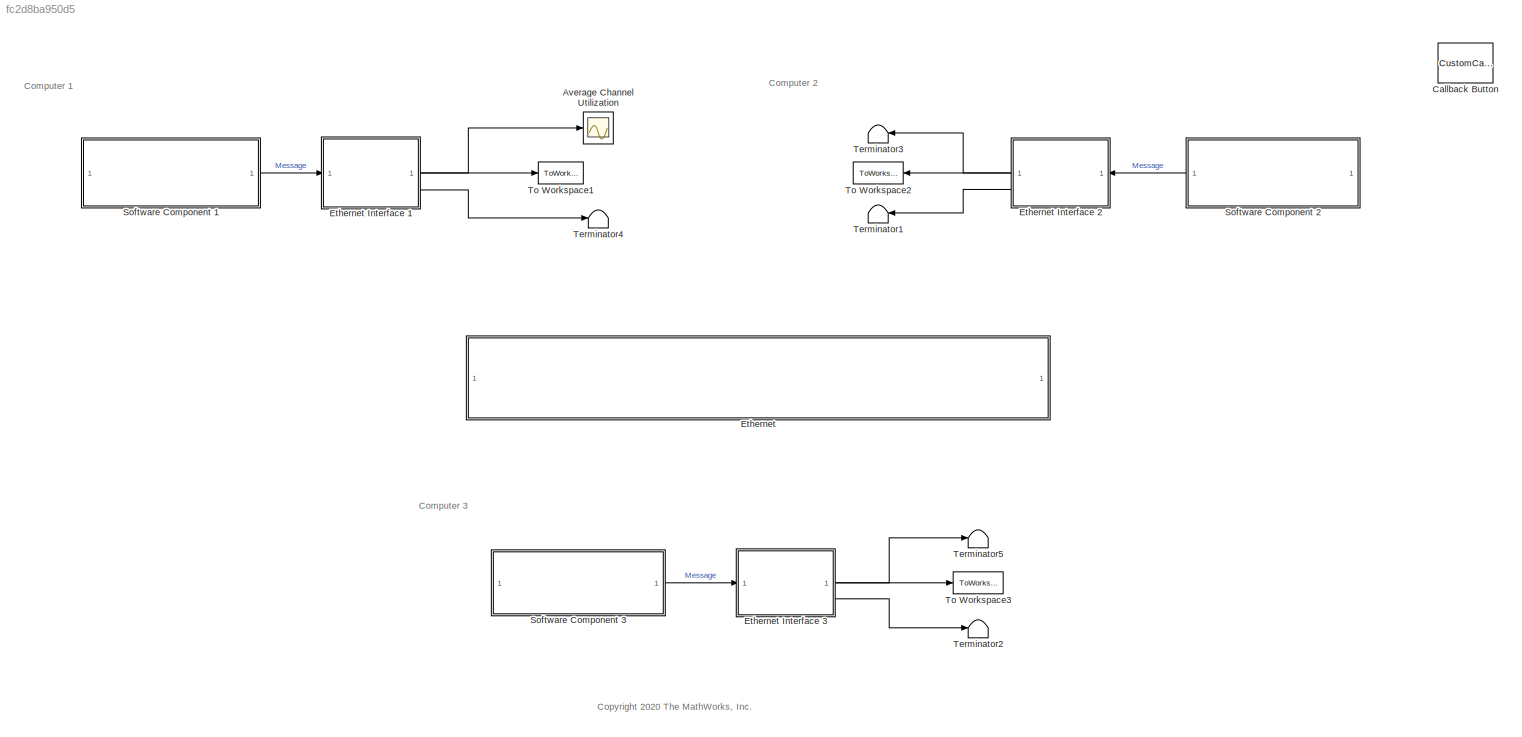
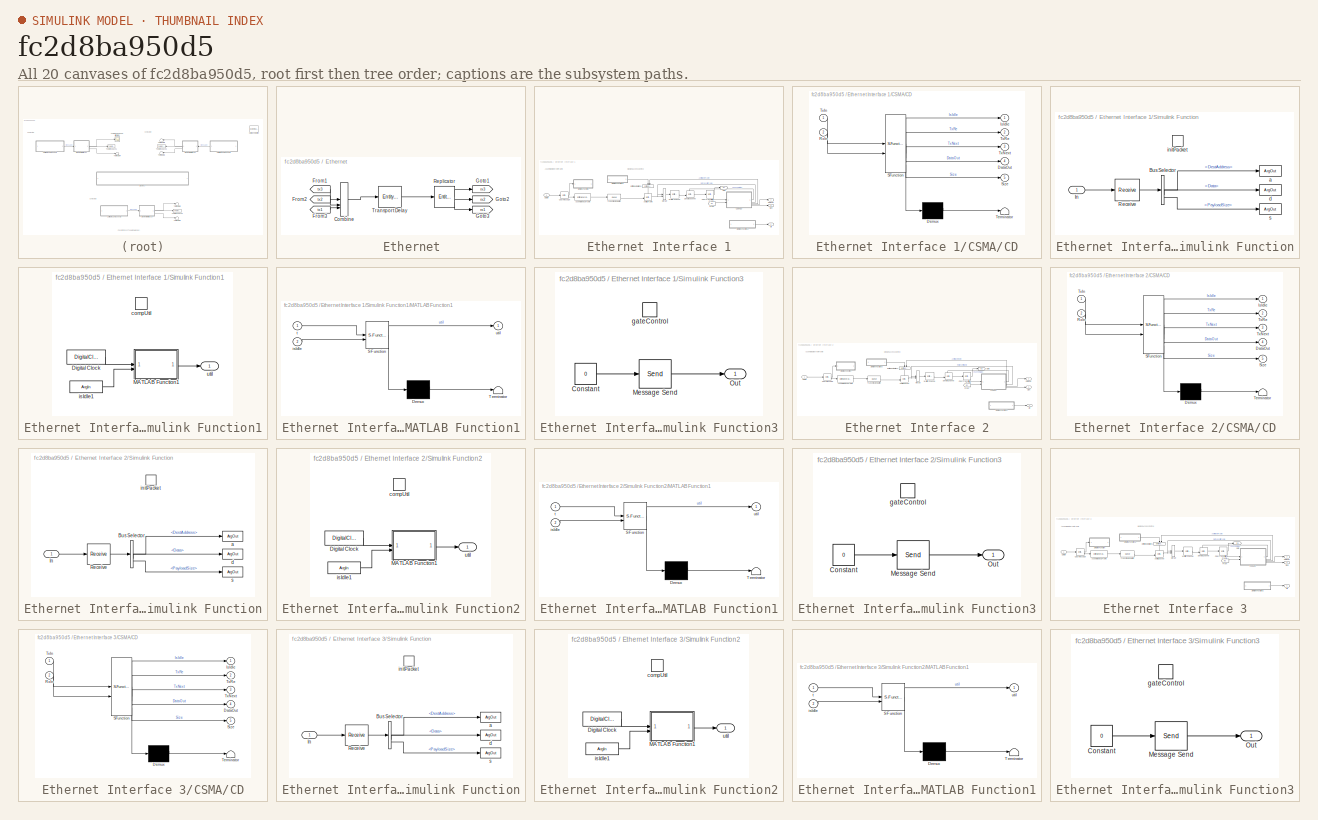
[diagram: thumbnail index - all 20 canvases of the model, root first then tree order]
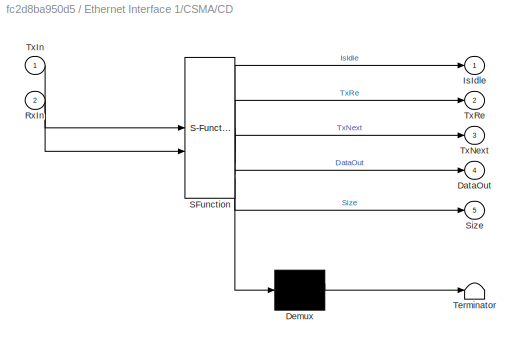
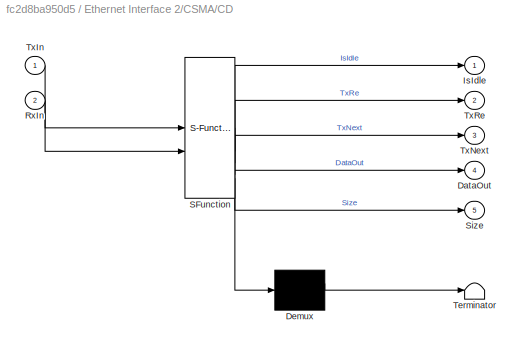
MODEL slx_fc2d8ba950d5
KIND model
CONFIG AbsTol = auto
CONFIG EnableMultiTasking = on
CONFIG FixedStep = 1
CONFIG InitFcn = BitRate = 10e6;
CONFIG MaxStep = Inf
CONFIG MinStep = auto
CONFIG PreLoadFcn = load ethernetTypes.mat;
CONFIG RelTol = 1e-3
CONFIG SampleTimeConstraint = Unconstrained
CONFIG SolverName = VariableStepAuto
CONFIG StartTime = 0.0
CONFIG StopTime = 50
BLOCK [SubSystem]    Ethernet
BLOCK [EntityInputSwitch]    Ethernet/Combine
  InputPortMap = u1,u2,u3
  InputPortMessageModes = m,m,m
  NumberInputPorts = 3
  OutputPortMap = o0
  OutputPortMessageModes = m
BLOCK [From]    Ethernet/From1
  GotoTag = tx3
  TagVisibility = global
BLOCK [From]    Ethernet/From2
  GotoTag = tx2
  TagVisibility = global
BLOCK [From]    Ethernet/From3
  GotoTag = tx1
  TagVisibility = global
BLOCK [Goto]    Ethernet/Goto1
  GotoTag = rx3
  TagVisibility = global
BLOCK [Goto]    Ethernet/Goto2
  GotoTag = rx2
  TagVisibility = global
BLOCK [Goto]    Ethernet/Goto3
  GotoTag = rx1
  TagVisibility = global
BLOCK [EntityReplicator]    Ethernet/Replicator
  InputPortMap = u0
  InputPortMessageModes = m
  NumberReplicas = 2
  OutputPortMap = o0,o1,o2
  OutputPortMessageModes = m,m,m
BLOCK [EntityServer]    Ethernet/Transport Delay
  Capacity = Inf
  InputPortMap = u2
  InputPortMessageModes = m
  OutputPortMap = o9
  OutputPortMessageModes = m
  ServiceCompleteAction = src = entity.TxAddress;\ndst = entity.RxAddress;\nsrcIdx = 0;\ndstIdx = 0;\nfor i = 1:length(Stations)\n    if src == Stations(i)\n        srcIdx = i;\n    end\n    if dst == Stations(i)\n        dstIdx = i;\n    end\n    if srcIdx > 0 && dstIdx > 0\n        break;\n    end\nend\nif rand < (PER(srcIdx) + PER(dstIdx))\n    entity.CRC = 1;\nend
  ServiceTimeAction = src = entity.TxAddress;\ndst = entity.RxAddress;\nsrcl = 0;\ndstl = 0;\nfor i = 1:length(Stations)\n    if src == Stations(i)\n        srcl = CableLength(i);\n    end\n    if dst == Stations(i)\n        dstl = CableLength(i);\n    end\n    if srcl > 0 && dstl > 0\n        break;\n    end\nend\ndt = ProcessingTime + (srcl + dstl)/3e8;
  ServiceTimeSource = MATLAB action
BLOCK [Scope] Average Channel Utilization
  Floating = off
  NumInputPorts = 1
  ScopeSpecificationString = Simulink.scopes.TimeScopeBlockCfg('CurrentConfiguration', extmgr.ConfigurationSet(extmgr.Configuration('Core','General UI',true),extmgr.Configuration('Core','Source UI',true),extmgr.Configuration('Sources','WiredSimulink',true,'DataLoggingVariableName','ScopeData1'),extmgr.Configuration('Visuals','Time Domain',true,'SerializedDisplays',{struct('MinYLimReal','0.09644','MaxYLimReal','0.16361','YLabe...<+1458ch>
BLOCK [CustomCallbackButton] Callback Button
  Configuration = {"components":[{"name":"BackgroundImageComponent","settings":{"image":{"size":[0,0],"src":"default","srcOrientation":"Right"},"position":[0,0,1,1]}},{"name":"ButtonStateComponent","settings":{"buttonType":"momentary","clickFcn":"showExample('simulink\/EthernetUsingMessagesSimEventsAndStateflowExample')","onValue":1,"position":[0,0,1,1],"pressDelay":"500","pressFcn":"","repeatInterval":"0","states"...<+1781ch>
  CustomBackgroundColor = {"color":[0.9568627451,0.9568627451,0.9568627451],"show":true}
BLOCK [SubSystem] Ethernet Interface 1
BLOCK [EntityGate] Ethernet Interface 1/Admit 1 Frame 
  InputPortMap = u0,u1
  InputPortMessageModes = m,m
  OpenGateAtSimulationStart = on
  OutputPortMap = o0
  OutputPortMessageModes = m
BLOCK [EntityGenerator] Ethernet Interface 1/Assemble MAC Frame
  EntityType = Bus object
  EntityTypeName = ethernetPacket
  GenerateAction = entity.TxAddress = StationID;\n[entity.RxAddress, entity.Data, entity.PayloadSize] = ...\n    initPacket();\nentity.TxDelay = (entity.PayloadSize+22)*8/BitRate;\nentity.BackoffTime = 0;\nentity.CRC = 0;  <repeated x3 — deduplicated; at blocks: Assemble MAC Frame>
  GenerationMethod = Event-based
  InputPortMap = u0
  InputPortMessageModes = m
  OutputPortMap = o3
  OutputPortMessageModes = m
BLOCK [SubSystem] Ethernet Interface 1/CSMA//CD
  ErrorFcn = Stateflow.Translate.translate
  PermitHierarchicalResolution = ExplicitOnly
  SFBlockType = Chart
  TreatAsAtomicUnit = on
BLOCK [Demux] Ethernet Interface 1/CSMA//CD/ Demux 
  Outputs = 1
BLOCK [S-Function] Ethernet Interface 1/CSMA//CD/ SFunction 
  EnableBusSupport = off
  FunctionName = sf_sfun
  Parameters = StationID
  PortCounts = [2 6]
  SFcnIsStateOwnerBlock = off
  SFunctionDeploymentMode = off
  Tag = Stateflow S-Function 4
BLOCK [Terminator] Ethernet Interface 1/CSMA//CD/ Terminator 
BLOCK [Outport] Ethernet Interface 1/CSMA//CD/DataOut
  Port = 4
BLOCK [Outport] Ethernet Interface 1/CSMA//CD/IsIdle
BLOCK [Inport] Ethernet Interface 1/CSMA//CD/RxIn
  Port = 2
BLOCK [Outport] Ethernet Interface 1/CSMA//CD/Size
  Port = 5
BLOCK [Inport] Ethernet Interface 1/CSMA//CD/TxIn
BLOCK [Outport] Ethernet Interface 1/CSMA//CD/TxNext
  Port = 3
BLOCK [Outport] Ethernet Interface 1/CSMA//CD/TxRe
  Port = 2
BLOCK [EntityReplicator] Ethernet Interface 1/Copy Message
  InputPortMap = u0
  InputPortMessageModes = m
  OutputPortMap = o0,o1
  OutputPortMessageModes = m,m
BLOCK [EntityReplicator] Ethernet Interface 1/Copy Transmitted Frame
  InputPortMap = u0
  InputPortMessageModes = m
  OutputPortMap = o0,o1
  OutputPortMessageModes = m,m
BLOCK [Inport] Ethernet Interface 1/DataIn
BLOCK [Outport] Ethernet Interface 1/DataOut
  Port = 2
BLOCK [EntityInputSwitch] Ethernet Interface 1/Entity Input Switch1
  InputPortMap = u1,u2
  InputPortMessageModes = m,m
  NameLocation = left
  OutputPortMap = o0
  OutputPortMessageModes = m
BLOCK [From] Ethernet Interface 1/From
  GotoTag = rx1
  TagVisibility = global
BLOCK [Goto] Ethernet Interface 1/Goto
  GotoTag = tx1
  TagVisibility = global
BLOCK [EntityInputSwitch] Ethernet Interface 1/Merge 
  InputPortMap = u1,u2
  InputPortMessageModes = m,m
  OutputPortMap = o0
  OutputPortMessageModes = m
BLOCK [EntityGate] Ethernet Interface 1/Send to Channel
  InputPortMap = u0,u1
  InputPortMessageModes = m,m
  OpenGateAtSimulationStart = on
  OutputPortMap = o0
  OutputPortMessageModes = m
BLOCK [SubSystem] Ethernet Interface 1/Simulink Function
  TreatAsAtomicUnit = on
BLOCK [BusSelector] Ethernet Interface 1/Simulink Function/Bus Selector
  OutputSignals = DestAddress,Data,PayloadSize
BLOCK [Inport] Ethernet Interface 1/Simulink Function/In
BLOCK [Receive] Ethernet Interface 1/Simulink Function/Receive
  InputPortMap = u0
  InputPortMessageModes = m
  OutputPortMap = o1
  QueueLength = 2^16-1
BLOCK [ArgOut] Ethernet Interface 1/Simulink Function/a
  ArgumentName = a
  DisableCoverage = on
BLOCK [ArgOut] Ethernet Interface 1/Simulink Function/d
  ArgumentName = d
  Port = 2
  PortDimensions = [1 1500]
BLOCK [TriggerPort] Ethernet Interface 1/Simulink Function/initPacket
  FunctionName = initPacket
  FunctionVisibility = scoped
  IsSimulinkFunction = on
  StatesWhenEnabling = held
  TriggerType = function-call
  VariantControl = (inherit)
BLOCK [ArgOut] Ethernet Interface 1/Simulink Function/s
  ArgumentName = s
  Port = 3
BLOCK [SubSystem] Ethernet Interface 1/Simulink Function1
  TreatAsAtomicUnit = on
BLOCK [DigitalClock] Ethernet Interface 1/Simulink Function1/Digital Clock
  SampleTime = -1
BLOCK [SubSystem] Ethernet Interface 1/Simulink Function1/MATLAB Function1
  ErrorFcn = Stateflow.Translate.translate
  PermitHierarchicalResolution = ExplicitOnly
  SFBlockType = MATLAB Function
  TreatAsAtomicUnit = on
BLOCK [Demux] Ethernet Interface 1/Simulink Function1/MATLAB Function1/ Demux 
  Outputs = 1
BLOCK [S-Function] Ethernet Interface 1/Simulink Function1/MATLAB Function1/ SFunction 
  EnableBusSupport = off
  FunctionName = sf_sfun
  PortCounts = [2 2]
  SFcnIsStateOwnerBlock = off
  SFunctionDeploymentMode = off
  Tag = Stateflow S-Function 7
BLOCK [Terminator] Ethernet Interface 1/Simulink Function1/MATLAB Function1/ Terminator 
BLOCK [Inport] Ethernet Interface 1/Simulink Function1/MATLAB Function1/isIdle
  Port = 2
BLOCK [Inport] Ethernet Interface 1/Simulink Function1/MATLAB Function1/t
BLOCK [Outport] Ethernet Interface 1/Simulink Function1/MATLAB Function1/util
BLOCK [TriggerPort] Ethernet Interface 1/Simulink Function1/compUtil
  FunctionName = compUtil
  FunctionVisibility = scoped
  IsSimulinkFunction = on
  StatesWhenEnabling = held
  TriggerType = function-call
  VariantControl = (inherit)
BLOCK [ArgIn] Ethernet Interface 1/Simulink Function1/isIdle1
  ArgumentName = isIdle
BLOCK [Outport] Ethernet Interface 1/Simulink Function1/util
BLOCK [SubSystem] Ethernet Interface 1/Simulink Function3
  TreatAsAtomicUnit = on
BLOCK [Constant] Ethernet Interface 1/Simulink Function3/Constant
  Value = 0
BLOCK [Send] Ethernet Interface 1/Simulink Function3/Message Send
  InputPortMap = u1
  OutputPortMessageModes = m
BLOCK [Outport] Ethernet Interface 1/Simulink Function3/Out
BLOCK [TriggerPort] Ethernet Interface 1/Simulink Function3/gateControl
  FunctionName = gateControl
  FunctionVisibility = scoped
  IsSimulinkFunction = on
  StatesWhenEnabling = held
  TriggerType = function-call
  VariantControl = Variant
BLOCK [Outport] Ethernet Interface 1/Size
  Port = 3
BLOCK [Queue] Ethernet Interface 1/Transmission Buffer
  Capacity = TxBufferCapacity
  ExitAction = gateControl();
  InputPortMap = u0
  InputPortMessageModes = m
  OutputPortMap = o5
  OutputPortMessageModes = m
BLOCK [EntityServer] Ethernet Interface 1/Wait for Channel
  Capacity = 1
  InputPortMap = u2
  InputPortMessageModes = m
  OutputPortMap = o9
  OutputPortMessageModes = m
  ServiceTimeAttributeName = BackoffTime
  ServiceTimeSource = Attribute
BLOCK [Outport] Ethernet Interface 1/util
BLOCK [SubSystem] Ethernet Interface 2
BLOCK [EntityGate] Ethernet Interface 2/Admit 1 packet 
  InputPortMap = u0,u1
  InputPortMessageModes = m,m
  OpenGateAtSimulationStart = on
  OutputPortMap = o0
  OutputPortMessageModes = m
BLOCK [EntityGenerator] Ethernet Interface 2/Assemble MAC Frame
  EntityType = Bus object
  EntityTypeName = ethernetPacket
  GenerationMethod = Event-based
  InputPortMap = u0
  InputPortMessageModes = m
  OutputPortMap = o3
  OutputPortMessageModes = m
BLOCK [SubSystem] Ethernet Interface 2/CSMA//CD
  ErrorFcn = Stateflow.Translate.translate
  PermitHierarchicalResolution = ExplicitOnly
  SFBlockType = Chart
  TreatAsAtomicUnit = on
BLOCK [Demux] Ethernet Interface 2/CSMA//CD/ Demux 
  Outputs = 1
BLOCK [S-Function] Ethernet Interface 2/CSMA//CD/ SFunction 
  EnableBusSupport = off
  FunctionName = sf_sfun
  Parameters = StationID
  PortCounts = [2 6]
  SFcnIsStateOwnerBlock = off
  SFunctionDeploymentMode = off
  Tag = Stateflow S-Function 2
BLOCK [Terminator] Ethernet Interface 2/CSMA//CD/ Terminator 
BLOCK [Outport] Ethernet Interface 2/CSMA//CD/DataOut
  Port = 4
BLOCK [Outport] Ethernet Interface 2/CSMA//CD/IsIdle
BLOCK [Inport] Ethernet Interface 2/CSMA//CD/RxIn
  Port = 2
BLOCK [Outport] Ethernet Interface 2/CSMA//CD/Size
  Port = 5
BLOCK [Inport] Ethernet Interface 2/CSMA//CD/TxIn
BLOCK [Outport] Ethernet Interface 2/CSMA//CD/TxNext
  Port = 3
BLOCK [Outport] Ethernet Interface 2/CSMA//CD/TxRe
  Port = 2
BLOCK [EntityReplicator] Ethernet Interface 2/Copy Message
  InputPortMap = u0
  InputPortMessageModes = m
  OutputPortMap = o0,o1
  OutputPortMessageModes = m,m
BLOCK [EntityReplicator] Ethernet Interface 2/Copy Transmitted Frame
  InputPortMap = u0
  InputPortMessageModes = m
  OutputPortMap = o0,o1
  OutputPortMessageModes = m,m
BLOCK [Inport] Ethernet Interface 2/DataIn
BLOCK [Outport] Ethernet Interface 2/DataOut
  Port = 2
BLOCK [EntityInputSwitch] Ethernet Interface 2/Entity Input Switch1
  InputPortMap = u1,u2
  InputPortMessageModes = m,m
  NameLocation = left
  OutputPortMap = o0
  OutputPortMessageModes = m
BLOCK [From] Ethernet Interface 2/From
  GotoTag = rx2
  TagVisibility = global
BLOCK [Goto] Ethernet Interface 2/Goto
  GotoTag = tx2
  TagVisibility = global
BLOCK [EntityInputSwitch] Ethernet Interface 2/Merge
  InputPortMap = u1,u2
  InputPortMessageModes = m,m
  OutputPortMap = o0
  OutputPortMessageModes = m
BLOCK [EntityGate] Ethernet Interface 2/Send to Channel
  InputPortMap = u0,u1
  InputPortMessageModes = m,m
  OpenGateAtSimulationStart = on
  OutputPortMap = o0
  OutputPortMessageModes = m
BLOCK [SubSystem] Ethernet Interface 2/Simulink Function
  TreatAsAtomicUnit = on
BLOCK [BusSelector] Ethernet Interface 2/Simulink Function/Bus Selector
  OutputSignals = DestAddress,Data,PayloadSize
BLOCK [Inport] Ethernet Interface 2/Simulink Function/In
BLOCK [Receive] Ethernet Interface 2/Simulink Function/Receive
  InputPortMap = u0
  InputPortMessageModes = m
  OutputPortMap = o1
  QueueLength = 2^16-1
BLOCK [ArgOut] Ethernet Interface 2/Simulink Function/a
  ArgumentName = a
  DisableCoverage = on
BLOCK [ArgOut] Ethernet Interface 2/Simulink Function/d
  ArgumentName = d
  Port = 2
  PortDimensions = [1 1500]
BLOCK [TriggerPort] Ethernet Interface 2/Simulink Function/initPacket
  FunctionName = initPacket
  FunctionVisibility = scoped
  IsSimulinkFunction = on
  StatesWhenEnabling = held
  TriggerType = function-call
  VariantControl = (inherit)
BLOCK [ArgOut] Ethernet Interface 2/Simulink Function/s
  ArgumentName = s
  Port = 3
BLOCK [SubSystem] Ethernet Interface 2/Simulink Function2
  TreatAsAtomicUnit = on
BLOCK [DigitalClock] Ethernet Interface 2/Simulink Function2/Digital Clock
  SampleTime = -1
BLOCK [SubSystem] Ethernet Interface 2/Simulink Function2/MATLAB Function1
  ErrorFcn = Stateflow.Translate.translate
  PermitHierarchicalResolution = ExplicitOnly
  SFBlockType = MATLAB Function
  TreatAsAtomicUnit = on
BLOCK [Demux] Ethernet Interface 2/Simulink Function2/MATLAB Function1/ Demux 
  Outputs = 1
BLOCK [S-Function] Ethernet Interface 2/Simulink Function2/MATLAB Function1/ SFunction 
  EnableBusSupport = off
  FunctionName = sf_sfun
  PortCounts = [2 2]
  SFcnIsStateOwnerBlock = off
  SFunctionDeploymentMode = off
  Tag = Stateflow S-Function 3
BLOCK [Terminator] Ethernet Interface 2/Simulink Function2/MATLAB Function1/ Terminator 
BLOCK [Inport] Ethernet Interface 2/Simulink Function2/MATLAB Function1/isIdle
  Port = 2
BLOCK [Inport] Ethernet Interface 2/Simulink Function2/MATLAB Function1/t
BLOCK [Outport] Ethernet Interface 2/Simulink Function2/MATLAB Function1/util
BLOCK [TriggerPort] Ethernet Interface 2/Simulink Function2/compUtil
  FunctionName = compUtil
  FunctionVisibility = scoped
  IsSimulinkFunction = on
  StatesWhenEnabling = held
  TriggerType = function-call
  VariantControl = (inherit)
BLOCK [ArgIn] Ethernet Interface 2/Simulink Function2/isIdle1
  ArgumentName = isIdle
BLOCK [Outport] Ethernet Interface 2/Simulink Function2/util
BLOCK [SubSystem] Ethernet Interface 2/Simulink Function3
  TreatAsAtomicUnit = on
BLOCK [Constant] Ethernet Interface 2/Simulink Function3/Constant
  Value = 0
BLOCK [Send] Ethernet Interface 2/Simulink Function3/Message Send
  InputPortMap = u1
  OutputPortMessageModes = m
BLOCK [Outport] Ethernet Interface 2/Simulink Function3/Out
BLOCK [TriggerPort] Ethernet Interface 2/Simulink Function3/gateControl
  FunctionName = gateControl
  FunctionVisibility = scoped
  IsSimulinkFunction = on
  StatesWhenEnabling = held
  TriggerType = function-call
  VariantControl = Variant
BLOCK [Outport] Ethernet Interface 2/Size
  Port = 3
BLOCK [Queue] Ethernet Interface 2/Transmission Buffer
  Capacity = TxBufferCapacity
  ExitAction = gateControl();
  InputPortMap = u0
  InputPortMessageModes = m
  OutputPortMap = o5
  OutputPortMessageModes = m
BLOCK [EntityServer] Ethernet Interface 2/Wait for Channel
  Capacity = 1
  InputPortMap = u2
  InputPortMessageModes = m
  OutputPortMap = o9
  OutputPortMessageModes = m
  ServiceTimeAttributeName = BackoffTime
  ServiceTimeSource = Attribute
BLOCK [Outport] Ethernet Interface 2/util
BLOCK [SubSystem] Ethernet Interface 3
BLOCK [EntityGate] Ethernet Interface 3/Admit 1 packet 
  InputPortMap = u0,u1
  InputPortMessageModes = m,m
  OpenGateAtSimulationStart = on
  OutputPortMap = o0
  OutputPortMessageModes = m
BLOCK [EntityGenerator] Ethernet Interface 3/Assemble MAC Frame
  EntityType = Bus object
  EntityTypeName = ethernetPacket
  GenerationMethod = Event-based
  InputPortMap = u0
  InputPortMessageModes = m
  OutputPortMap = o3
  OutputPortMessageModes = m
BLOCK [SubSystem] Ethernet Interface 3/CSMA//CD
  ErrorFcn = Stateflow.Translate.translate
  PermitHierarchicalResolution = ExplicitOnly
  SFBlockType = Chart
  TreatAsAtomicUnit = on
BLOCK [Demux] Ethernet Interface 3/CSMA//CD/ Demux 
  Outputs = 1
BLOCK [S-Function] Ethernet Interface 3/CSMA//CD/ SFunction 
  EnableBusSupport = off
  FunctionName = sf_sfun
  Parameters = StationID
  PortCounts = [2 6]
  SFcnIsStateOwnerBlock = off
  SFunctionDeploymentMode = off
  Tag = Stateflow S-Function 1
BLOCK [Terminator] Ethernet Interface 3/CSMA//CD/ Terminator 
BLOCK [Outport] Ethernet Interface 3/CSMA//CD/DataOut
  Port = 4
BLOCK [Outport] Ethernet Interface 3/CSMA//CD/IsIdle
BLOCK [Inport] Ethernet Interface 3/CSMA//CD/RxIn
  Port = 2
BLOCK [Outport] Ethernet Interface 3/CSMA//CD/Size
  Port = 5
BLOCK [Inport] Ethernet Interface 3/CSMA//CD/TxIn
BLOCK [Outport] Ethernet Interface 3/CSMA//CD/TxNext
  Port = 3
BLOCK [Outport] Ethernet Interface 3/CSMA//CD/TxRe
  Port = 2
BLOCK [EntityReplicator] Ethernet Interface 3/Copy Message
  InputPortMap = u0
  InputPortMessageModes = m
  OutputPortMap = o0,o1
  OutputPortMessageModes = m,m
BLOCK [EntityReplicator] Ethernet Interface 3/Copy Transmitted Frame
  InputPortMap = u0
  InputPortMessageModes = m
  OutputPortMap = o0,o1
  OutputPortMessageModes = m,m
BLOCK [Inport] Ethernet Interface 3/DataIn
BLOCK [Outport] Ethernet Interface 3/DataOut
  Port = 2
BLOCK [EntityInputSwitch] Ethernet Interface 3/Entity Input Switch1
  InputPortMap = u1,u2
  InputPortMessageModes = m,m
  NameLocation = left
  OutputPortMap = o0
  OutputPortMessageModes = m
BLOCK [From] Ethernet Interface 3/From
  GotoTag = rx3
  TagVisibility = global
BLOCK [Goto] Ethernet Interface 3/Goto
  GotoTag = tx3
  TagVisibility = global
BLOCK [EntityInputSwitch] Ethernet Interface 3/Merge
  InputPortMap = u1,u2
  InputPortMessageModes = m,m
  OutputPortMap = o0
  OutputPortMessageModes = m
BLOCK [EntityGate] Ethernet Interface 3/Send to Channel
  InputPortMap = u0,u1
  InputPortMessageModes = m,m
  OpenGateAtSimulationStart = on
  OutputPortMap = o0
  OutputPortMessageModes = m
BLOCK [SubSystem] Ethernet Interface 3/Simulink Function
  TreatAsAtomicUnit = on
BLOCK [BusSelector] Ethernet Interface 3/Simulink Function/Bus Selector
  OutputSignals = DestAddress,Data,PayloadSize
BLOCK [Inport] Ethernet Interface 3/Simulink Function/In
BLOCK [Receive] Ethernet Interface 3/Simulink Function/Receive
  InputPortMap = u0
  InputPortMessageModes = m
  OutputPortMap = o1
  QueueLength = 2^16-1
BLOCK [ArgOut] Ethernet Interface 3/Simulink Function/a
  ArgumentName = a
  DisableCoverage = on
BLOCK [ArgOut] Ethernet Interface 3/Simulink Function/d
  ArgumentName = d
  Port = 2
  PortDimensions = [1 1500]
BLOCK [TriggerPort] Ethernet Interface 3/Simulink Function/initPacket
  FunctionName = initPacket
  FunctionVisibility = scoped
  IsSimulinkFunction = on
  StatesWhenEnabling = held
  TriggerType = function-call
  VariantControl = (inherit)
BLOCK [ArgOut] Ethernet Interface 3/Simulink Function/s
  ArgumentName = s
  Port = 3
BLOCK [SubSystem] Ethernet Interface 3/Simulink Function2
  TreatAsAtomicUnit = on
BLOCK [DigitalClock] Ethernet Interface 3/Simulink Function2/Digital Clock
  SampleTime = -1
BLOCK [SubSystem] Ethernet Interface 3/Simulink Function2/MATLAB Function1
  ErrorFcn = Stateflow.Translate.translate
  PermitHierarchicalResolution = ExplicitOnly
  SFBlockType = MATLAB Function
  TreatAsAtomicUnit = on
BLOCK [Demux] Ethernet Interface 3/Simulink Function2/MATLAB Function1/ Demux 
  Outputs = 1
BLOCK [S-Function] Ethernet Interface 3/Simulink Function2/MATLAB Function1/ SFunction 
  EnableBusSupport = off
  FunctionName = sf_sfun
  PortCounts = [2 2]
  SFcnIsStateOwnerBlock = off
  SFunctionDeploymentMode = off
  Tag = Stateflow S-Function 5
BLOCK [Terminator] Ethernet Interface 3/Simulink Function2/MATLAB Function1/ Terminator 
BLOCK [Inport] Ethernet Interface 3/Simulink Function2/MATLAB Function1/isIdle
  Port = 2
BLOCK [Inport] Ethernet Interface 3/Simulink Function2/MATLAB Function1/t
BLOCK [Outport] Ethernet Interface 3/Simulink Function2/MATLAB Function1/util
BLOCK [TriggerPort] Ethernet Interface 3/Simulink Function2/compUtil
  FunctionName = compUtil
  FunctionVisibility = scoped
  IsSimulinkFunction = on
  StatesWhenEnabling = held
  TriggerType = function-call
  VariantControl = (inherit)
BLOCK [ArgIn] Ethernet Interface 3/Simulink Function2/isIdle1
  ArgumentName = isIdle
BLOCK [Outport] Ethernet Interface 3/Simulink Function2/util
BLOCK [SubSystem] Ethernet Interface 3/Simulink Function3
  TreatAsAtomicUnit = on
BLOCK [Constant] Ethernet Interface 3/Simulink Function3/Constant
  Value = 0
BLOCK [Send] Ethernet Interface 3/Simulink Function3/Message Send
  InputPortMap = u1
  OutputPortMessageModes = m
BLOCK [Outport] Ethernet Interface 3/Simulink Function3/Out
BLOCK [TriggerPort] Ethernet Interface 3/Simulink Function3/gateControl
  FunctionName = gateControl
  FunctionVisibility = scoped
  IsSimulinkFunction = on
  StatesWhenEnabling = held
  TriggerType = function-call
  VariantControl = Variant
BLOCK [Outport] Ethernet Interface 3/Size
  Port = 3
BLOCK [Queue] Ethernet Interface 3/Transmission Buffer
  Capacity = TxBufferCapacity
  ExitAction = gateControl();
  InputPortMap = u0
  InputPortMessageModes = m
  OutputPortMap = o5
  OutputPortMessageModes = m
BLOCK [EntityServer] Ethernet Interface 3/Wait for Channel
  Capacity = 1
  InputPortMap = u2
  InputPortMessageModes = m
  OutputPortMap = o9
  OutputPortMessageModes = m
  ServiceTimeAttributeName = BackoffTime
  ServiceTimeSource = Attribute
BLOCK [Outport] Ethernet Interface 3/util
BLOCK [ModelReference] Software Component 1
  ModelNameDialog = mSoftwareComponent1
  ModelReferenceVersion = 9.0
  OutputPortMessageModes = m
BLOCK [ModelReference] Software Component 2
  ModelNameDialog = mSoftwareComponent2
  ModelReferenceVersion = 9.0
  OutputPortMessageModes = m
BLOCK [ModelReference] Software Component 3
  ModelNameDialog = mSoftwareComponent3
  ModelReferenceVersion = 9.0
  OutputPortMessageModes = m
BLOCK [Terminator] Terminator1
BLOCK [Terminator] Terminator2
BLOCK [Terminator] Terminator3
BLOCK [Terminator] Terminator4
BLOCK [Terminator] Terminator5
BLOCK [ToWorkspace] To Workspace1
  FixptAsFi = on
  MaxDataPoints = inf
  SampleTime = -1
  SaveFormat = Timeseries
  VariableName = Rx1
BLOCK [ToWorkspace] To Workspace2
  FixptAsFi = on
  MaxDataPoints = inf
  SampleTime = -1
  SaveFormat = Timeseries
  VariableName = Rx2
BLOCK [ToWorkspace] To Workspace3
  FixptAsFi = on
  MaxDataPoints = inf
  SampleTime = -1
  SaveFormat = Timeseries
  VariableName = Rx3
ANNOTATION (root): Computer 1
ANNOTATION (root): Computer 2
ANNOTATION (root): Computer 3
ANNOTATION (root): <copyright redacted>
ANNOTATION Ethernet Interface 1: Assemble Ethernet Frame
ANNOTATION Ethernet Interface 1: Medium Access Control
ANNOTATION Ethernet Interface 2: Assemble Ethernet Frame
ANNOTATION Ethernet Interface 2: Medium Access Control
ANNOTATION Ethernet Interface 3: Assemble Ethernet Frame
ANNOTATION Ethernet Interface 3: Medium Access Control
LINE Ethernet Interface 1:1 -> Average Channel Utilization:1
LINE Ethernet Interface 1:2 -> To Workspace1:1
LINE Ethernet Interface 1:3 -> Terminator4:1
LINE Ethernet Interface 2:1 -> Terminator3:1
LINE Ethernet Interface 2:2 -> To Workspace2:1
LINE Ethernet Interface 2:3 -> Terminator1:1
LINE Ethernet Interface 3:1 -> Terminator5:1
LINE Ethernet Interface 3:2 -> To Workspace3:1
LINE Ethernet Interface 3:3 -> Terminator2:1
LINE Software Component 1:1 -> Ethernet Interface 1:1
LINE Software Component 2:1 -> Ethernet Interface 2:1
LINE Software Component 3:1 -> Ethernet Interface 3:1
CHART Ethernet Interface 2/CSMA//CD states=11 transitions=19
  STATE_LABEL 'Standby\nen:\nIsIdle.data = 1;\nsend(IsIdle);\ncompUtil(1);'
  STATE_LABEL 'Receiving\nen:\ndelay = RxIn.data.TxDelay;\nerr = RxIn.data.CRC;\nforward(RxIn, Rx);\nIsIdle.data = 0;\nsend(IsIdle);\ncompUtil(0);'
  STATE_LABEL 'Transmitting\nen:\ndelay = TxIn.data.TxDelay;\nforward(TxIn, TxBuffer);\nIsIdle.data = 0;\nsend(IsIdle);\ncompUtil(0);'
  STATE_LABEL 'Collision\nen:\nn = n + 1;'
  STATE_LABEL 'TxSuccess\n'
  STATE_LABEL 'RxSuccess'
  STATE_LABEL 'RxFail\n'
  STATE_LABEL 'TxReset'
  STATE_LABEL 'RxReset'
  STATE_LABEL 't = Backoff(u)'
  STATE_LABEL 'SCRIPT:\nfunction t = Backoff(u)\nt = floor(rand*(2^min([u,10])))*5.12e-5;\n'
  STATE_LABEL 'InitRand'
  STATE_LABEL "SCRIPT:\nfunction InitRand\nrand('seed', StationID);"
CHART Ethernet Interface 2/Simulink Function2/MATLAB Function1 states=1 transitions=1
  STATE_LABEL 'eML_blk_kernel()'
  STATE_LABEL 'SCRIPT:\nfunction util = fcn(t, isIdle)\n\npersistent lastTime lastState totalUse;\n\nif isempty(lastTime)\n    lastTime = 0;\n    lastState = 0;\n    totalUse = 0;\nend\n\nif lastState ==1 % busy\n    totalUse = totalUse + (t - lastTime);\nend\nlastTime = t;\nif isIdle\n    lastState = 0;\nelse\n    lastState = 1;\nend\nif t > 0\n    util = totalUse/t;\nelse\n    util = lastState;\nend\n\n'  <repeated x3 — deduplicated; at blocks: MATLAB Function1>
CHART Ethernet Interface 1/CSMA//CD states=11 transitions=19
  STATE_LABEL 'Standby\nen:\nIsIdle.data = 1;\nsend(IsIdle);\ncompUtil(1);'
  STATE_LABEL 'Receiving\nen:\ndelay = RxIn.data.TxDelay;\nerr = RxIn.data.CRC;\nforward(RxIn, Rx);\nIsIdle.data = 0;\nsend(IsIdle);\ncompUtil(0);'
  STATE_LABEL 'Transmitting\nen:\ndelay = TxIn.data.TxDelay;\nforward(TxIn, TxBuffer);\nIsIdle.data = 0;\nsend(IsIdle);\ncompUtil(0);'
  STATE_LABEL 'Collision\nen:\nn = n + 1;'
  STATE_LABEL 'TxSuccess\n'
  STATE_LABEL 'RxSuccess'
  STATE_LABEL 'RxFail\n'
  STATE_LABEL 'TxReset'
  STATE_LABEL 'RxReset'
  STATE_LABEL 't = Backoff(u)'
  STATE_LABEL 'SCRIPT:\nfunction t = Backoff(u)\nt = floor(rand*(2^min([u,10])))*5.12e-5;\n'
  STATE_LABEL 'InitRand'
  STATE_LABEL "SCRIPT:\nfunction InitRand\nrand('seed', StationID);"
CHART Ethernet Interface 3/Simulink Function2/MATLAB Function1 states=1 transitions=1
  STATE_LABEL 'eML_blk_kernel()'
CHART Ethernet Interface 1/Simulink Function1/MATLAB Function1 states=1 transitions=1
  STATE_LABEL 'eML_blk_kernel()'
CHART Ethernet Interface 3/CSMA//CD states=11 transitions=19
  STATE_LABEL 'Standby\nen:\nIsIdle.data = 1;\nsend(IsIdle);\ncompUtil(1);'
  STATE_LABEL 'Receiving\nen:\ndelay = RxIn.data.TxDelay;\nerr = RxIn.data.CRC;\nforward(RxIn, Rx);\nIsIdle.data = 0;\nsend(IsIdle);\ncompUtil(0);'
  STATE_LABEL 'Transmitting\nen:\ndelay = TxIn.data.TxDelay;\nforward(TxIn, TxBuffer);\nIsIdle.data = 0;\nsend(IsIdle);\ncompUtil(0);'
  STATE_LABEL 'Collision\nen:\nn = n + 1;'
  STATE_LABEL 'TxSuccess\n'
  STATE_LABEL 'RxSuccess'
  STATE_LABEL 'RxFail\n'
  STATE_LABEL 'TxReset'
  STATE_LABEL 'RxReset'
  STATE_LABEL 't = Backoff(u)'
  STATE_LABEL 'SCRIPT:\nfunction t = Backoff(u)\nt = floor(rand*(2^min([u,10])))*5.12e-5;\n'
  STATE_LABEL 'InitRand'
  STATE_LABEL "SCRIPT:\nfunction InitRand\nrand('seed', StationID);"
CHART  states=0 transitions=0
CHART  states=0 transitions=0
CHART  states=0 transitions=0
CHART  states=0 transitions=0
CHART  states=0 transitions=0
CHART  states=0 transitions=0
